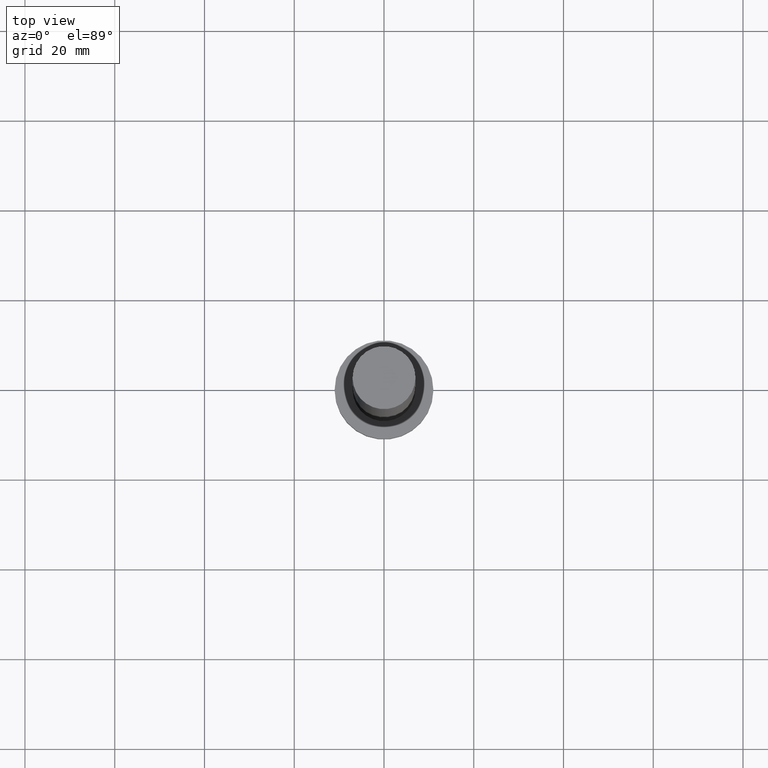
[diagram: clean part render]
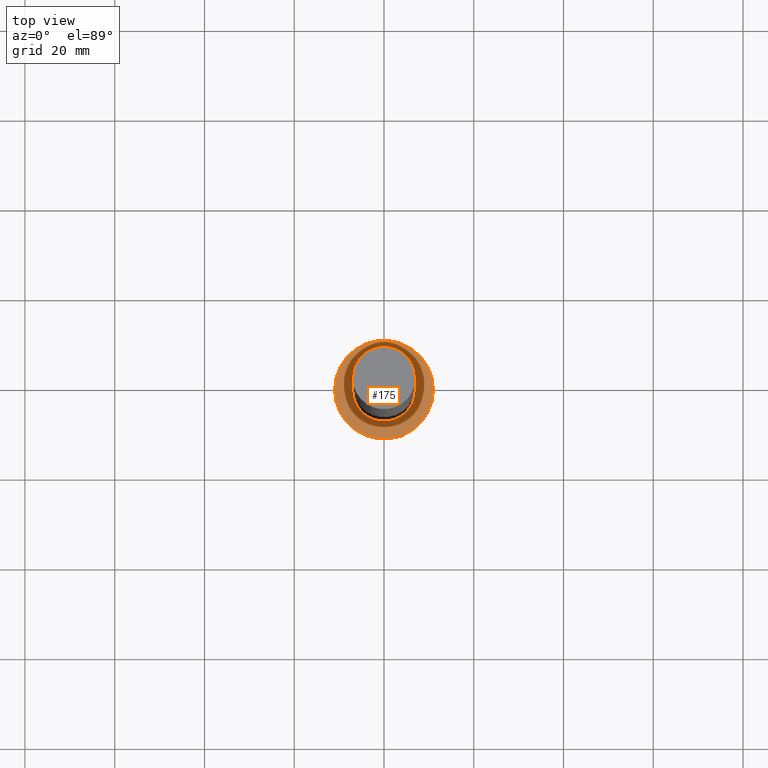
[diagram: same view with one face highlighted and labeled with its STEP entity id]
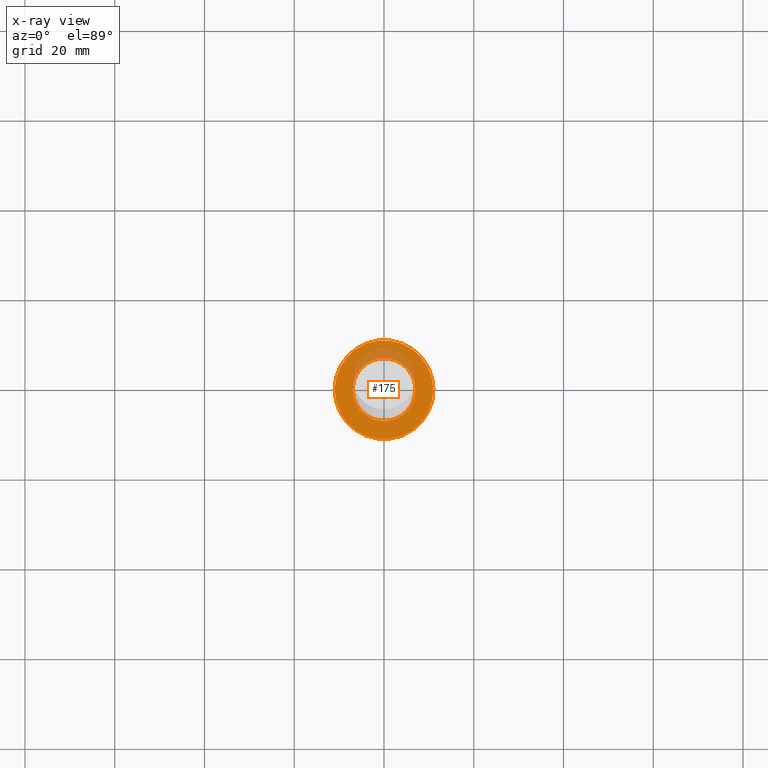
[diagram: x-ray of the same camera — body ghosted, the highlighted face saturated]
A machine part, top view. The second image highlights one B-rep face of the part: STEP entity #175.
The next image is the same camera in x-ray: the body ghosted, the highlighted face saturated — about 17% of this face is hidden behind the body in this view.
In plain terms, the highlighted planar face has unit normal (0, 0, 1).
Its self-contained STEP definition (entity closure, byte-faithful):
#2 = DIRECTION ( 'NONE',  ( 1.000000000000000000, 0.000000000000000000, 0.000000000000000000 ) ) ;
#12 = VERTEX_POINT ( 'NONE', #43 ) ;
#22 = DIRECTION ( 'NONE',  ( 0.000000000000000000, 0.000000000000000000, 1.000000000000000000 ) ) ;
#24 = CARTESIAN_POINT ( 'NONE',  ( 0.000000000000000000, 0.000000000000000000, 7.000000000000000000 ) ) ;
#25 = VERTEX_POINT ( 'NONE', #214 ) ;
#34 = FACE_BOUND ( 'NONE', #141, .T. ) ;
#43 = CARTESIAN_POINT ( 'NONE',  ( 7.000000000000000888, 8.572527594031474176E-16, 7.000000000000000000 ) ) ;
#51 = DIRECTION ( 'NONE',  ( 1.000000000000000000, 0.000000000000000000, -0.000000000000000000 ) ) ;
#52 = DIRECTION ( 'NONE',  ( 0.000000000000000000, 0.000000000000000000, 1.000000000000000000 ) ) ;
#58 = AXIS2_PLACEMENT_3D ( 'NONE', #93, #211, #51 ) ;
#62 = EDGE_CURVE ( 'NONE', #83, #87, #212, .T. ) ;
#71 = CIRCLE ( 'NONE', #236, 7.000000000000000888 ) ;
#83 = VERTEX_POINT ( 'NONE', #154 ) ;
#87 = VERTEX_POINT ( 'NONE', #183 ) ;
#90 = DIRECTION ( 'NONE',  ( 1.000000000000000000, 0.000000000000000000, 0.000000000000000000 ) ) ;
#91 = EDGE_CURVE ( 'NONE', #12, #25, #71, .T. ) ;
#93 = CARTESIAN_POINT ( 'NONE',  ( 0.000000000000000000, 0.000000000000000000, 7.000000000000000000 ) ) ;
#97 = AXIS2_PLACEMENT_3D ( 'NONE', #193, #217, #254 ) ;
#102 = ORIENTED_EDGE ( 'NONE', *, *, #62, .T. ) ;
#104 = CIRCLE ( 'NONE', #213, 11.00000000000000000 ) ;
#106 = DIRECTION ( 'NONE',  ( 0.000000000000000000, 0.000000000000000000, 1.000000000000000000 ) ) ;
#113 = AXIS2_PLACEMENT_3D ( 'NONE', #237, #52, #153 ) ;
#129 = FACE_OUTER_BOUND ( 'NONE', #190, .T. ) ;
#141 = EDGE_LOOP ( 'NONE', ( #170, #143 ) ) ;
#143 = ORIENTED_EDGE ( 'NONE', *, *, #91, .F. ) ;
#148 = EDGE_CURVE ( 'NONE', #25, #12, #163, .T. ) ;
#153 = DIRECTION ( 'NONE',  ( 1.000000000000000000, 0.000000000000000000, 0.000000000000000000 ) ) ;
#154 = CARTESIAN_POINT ( 'NONE',  ( 11.00000000000000000, 1.347111479062088405E-15, 7.000000000000000000 ) ) ;
#163 = CIRCLE ( 'NONE', #113, 7.000000000000000888 ) ;
#170 = ORIENTED_EDGE ( 'NONE', *, *, #148, .F. ) ;
#175 = ADVANCED_FACE ( 'NONE', ( #34, #129 ), #250, .T. ) ;
#183 = CARTESIAN_POINT ( 'NONE',  ( -11.00000000000000000, 0.000000000000000000, 7.000000000000000000 ) ) ;
#186 = ORIENTED_EDGE ( 'NONE', *, *, #234, .T. ) ;
#190 = EDGE_LOOP ( 'NONE', ( #186, #102 ) ) ;
#193 = CARTESIAN_POINT ( 'NONE',  ( 0.000000000000000000, 0.000000000000000000, 7.000000000000000000 ) ) ;
#211 = DIRECTION ( 'NONE',  ( 0.000000000000000000, 0.000000000000000000, 1.000000000000000000 ) ) ;
#212 = CIRCLE ( 'NONE', #97, 11.00000000000000000 ) ;
#213 = AXIS2_PLACEMENT_3D ( 'NONE', #24, #22, #2 ) ;
#214 = CARTESIAN_POINT ( 'NONE',  ( -7.000000000000000888, 0.000000000000000000, 7.000000000000000000 ) ) ;
#217 = DIRECTION ( 'NONE',  ( 0.000000000000000000, 0.000000000000000000, 1.000000000000000000 ) ) ;
#234 = EDGE_CURVE ( 'NONE', #87, #83, #104, .T. ) ;
#236 = AXIS2_PLACEMENT_3D ( 'NONE', #255, #106, #90 ) ;
#237 = CARTESIAN_POINT ( 'NONE',  ( 0.000000000000000000, 0.000000000000000000, 7.000000000000000000 ) ) ;
#250 = PLANE ( 'NONE',  #58 ) ;
#254 = DIRECTION ( 'NONE',  ( 1.000000000000000000, 0.000000000000000000, 0.000000000000000000 ) ) ;
#255 = CARTESIAN_POINT ( 'NONE',  ( 0.000000000000000000, 0.000000000000000000, 7.000000000000000000 ) ) ;